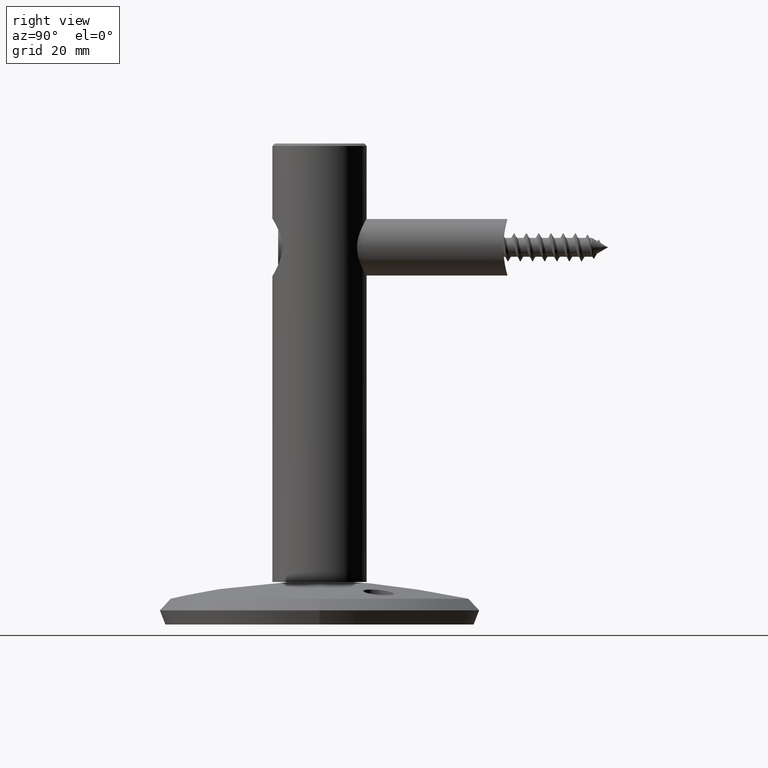
[diagram: clean part render]
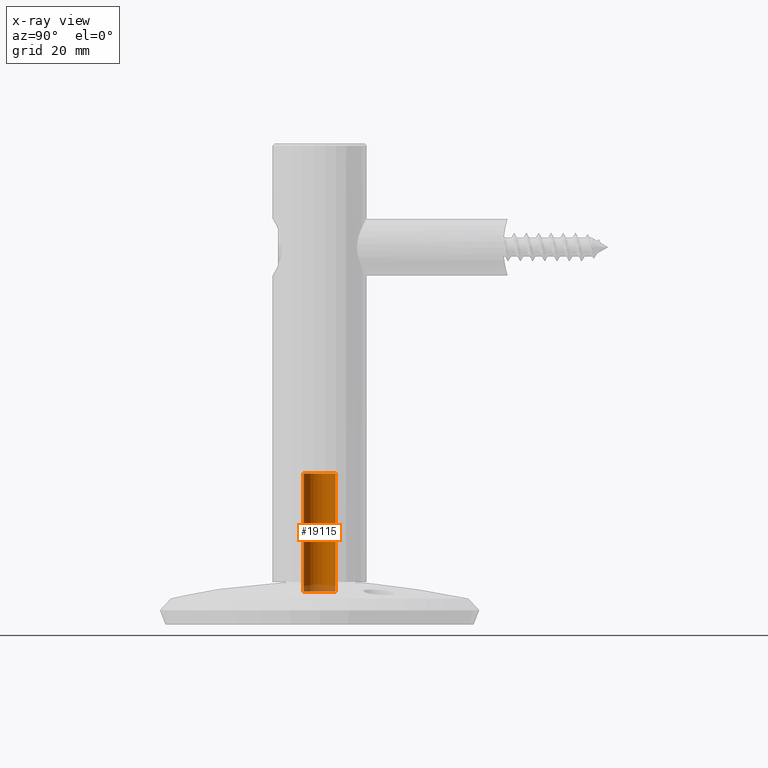
[diagram: x-ray — body ghosted, one internal face saturated and labeled with its STEP entity id]
A machine part, right view, then the same camera in x-ray: the body is ghosted and one INTERNAL B-rep face — a face not visible from any outside direction — is saturated and labeled: STEP entity #19115.
In plain terms, the highlighted cylindrical surface (edge-blend (fillet) strip) has radius 3.4 mm, axis along (-0, -0, -1).
Its self-contained STEP definition (entity closure, byte-faithful):
#453 = VECTOR ( 'NONE', #21315, 1000.000000000000000 ) ;
#817 = LINE ( 'NONE', #12305, #453 ) ;
#1525 = CIRCLE ( 'NONE', #27697, 3.399999999999994138 ) ;
#1733 = DIRECTION ( 'NONE',  ( -0.000000000000000000, -9.130123557772669567E-18, -1.000000000000000000 ) ) ;
#1919 = CARTESIAN_POINT ( 'NONE',  ( 0.000000000000000000, 3.399999999999994582, 25.00000000000000000 ) ) ;
#1953 = EDGE_CURVE ( 'NONE', #7664, #13791, #9097, .T. ) ;
#3571 = CARTESIAN_POINT ( 'NONE',  ( 0.000000000000000000, 0.000000000000000000, 0.000000000000000000 ) ) ;
#4064 = CARTESIAN_POINT ( 'NONE',  ( 0.000000000000000000, 3.399999999999998579, 1.281616637927301223E-16 ) ) ;
#4094 = EDGE_LOOP ( 'NONE', ( #19383, #19314, #5944, #19945 ) ) ;
#5168 = DIRECTION ( 'NONE',  ( -0.000000000000000000, -9.130123557772669567E-18, -1.000000000000000000 ) ) ;
#5944 = ORIENTED_EDGE ( 'NONE', *, *, #1953, .T. ) ;
#5983 = DIRECTION ( 'NONE',  ( 0.000000000000000000, 1.000000000000000000, -9.130123557772669567E-18 ) ) ;
#6062 = VERTEX_POINT ( 'NONE', #16938 ) ;
#6894 = FACE_OUTER_BOUND ( 'NONE', #4094, .T. ) ;
#7664 = VERTEX_POINT ( 'NONE', #26894 ) ;
#9097 = CIRCLE ( 'NONE', #17764, 3.399999999999998579 ) ;
#10631 = DIRECTION ( 'NONE',  ( 0.000000000000000000, 1.000000000000000000, -9.130123557772669567E-18 ) ) ;
#12305 = CARTESIAN_POINT ( 'NONE',  ( 0.000000000000000000, 3.399999999999996358, -3.104242009642704448E-17 ) ) ;
#12318 = EDGE_CURVE ( 'NONE', #23136, #13791, #817, .T. ) ;
#13414 = DIRECTION ( 'NONE',  ( -0.000000000000000000, -9.130123557772669567E-18, -1.000000000000000000 ) ) ;
#13791 = VERTEX_POINT ( 'NONE', #4064 ) ;
#14486 = AXIS2_PLACEMENT_3D ( 'NONE', #3571, #26311, #10631 ) ;
#15218 = CARTESIAN_POINT ( 'NONE',  ( 0.000000000000000000, 1.453552956810010289E-33, 1.592040838891571914E-16 ) ) ;
#16068 = DIRECTION ( 'NONE',  ( 0.000000000000000000, 1.000000000000000000, 0.000000000000000000 ) ) ;
#16193 = LINE ( 'NONE', #25272, #28797 ) ;
#16938 = CARTESIAN_POINT ( 'NONE',  ( 4.163799117100994150E-16, -3.399999999999993694, 25.00000000000000000 ) ) ;
#17764 = AXIS2_PLACEMENT_3D ( 'NONE', #15218, #1733, #5983 ) ;
#18471 = CYLINDRICAL_SURFACE ( 'NONE', #14486, 3.399999999999996358 ) ;
#19115 = ADVANCED_FACE ( 'NONE', ( #6894 ), #18471, .F. ) ;
#19314 = ORIENTED_EDGE ( 'NONE', *, *, #27719, .T. ) ;
#19383 = ORIENTED_EDGE ( 'NONE', *, *, #23274, .F. ) ;
#19945 = ORIENTED_EDGE ( 'NONE', *, *, #12318, .F. ) ;
#21315 = DIRECTION ( 'NONE',  ( -0.000000000000000000, -9.130123557772669567E-18, -1.000000000000000000 ) ) ;
#23136 = VERTEX_POINT ( 'NONE', #1919 ) ;
#23274 = EDGE_CURVE ( 'NONE', #6062, #23136, #1525, .T. ) ;
#25272 = CARTESIAN_POINT ( 'NONE',  ( 4.163799117100996615E-16, -3.399999999999996358, 3.104242009642704448E-17 ) ) ;
#26311 = DIRECTION ( 'NONE',  ( -0.000000000000000000, -9.130123557772669567E-18, -1.000000000000000000 ) ) ;
#26894 = CARTESIAN_POINT ( 'NONE',  ( 4.163799117100999080E-16, -3.399999999999998135, 1.902465039855842359E-16 ) ) ;
#27018 = CARTESIAN_POINT ( 'NONE',  ( 0.000000000000000000, 2.282530889443167515E-16, 25.00000000000000000 ) ) ;
#27697 = AXIS2_PLACEMENT_3D ( 'NONE', #27018, #13414, #16068 ) ;
#27719 = EDGE_CURVE ( 'NONE', #6062, #7664, #16193, .T. ) ;
#28797 = VECTOR ( 'NONE', #5168, 1000.000000000000000 ) ;